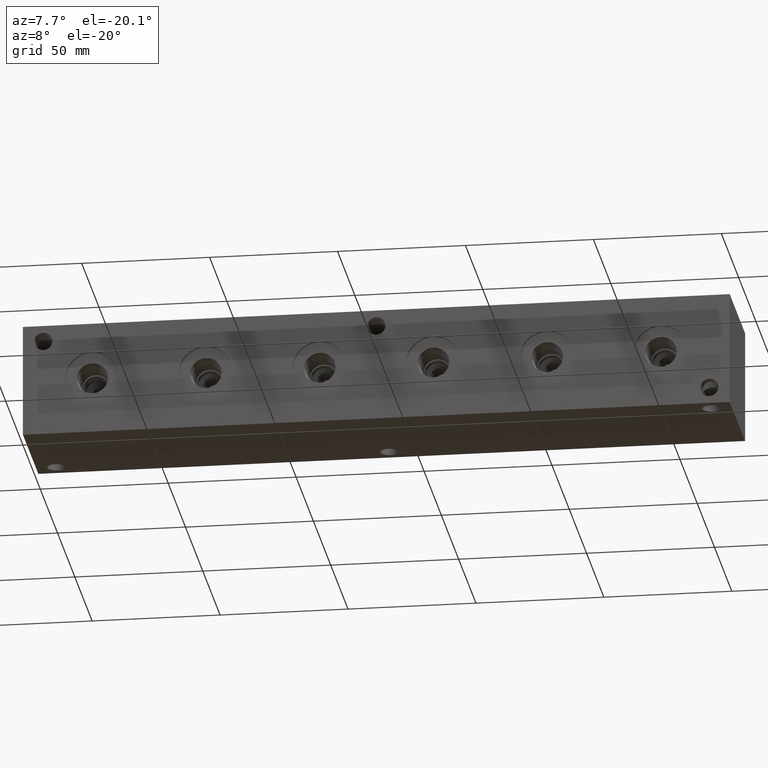
[diagram: clean part render]
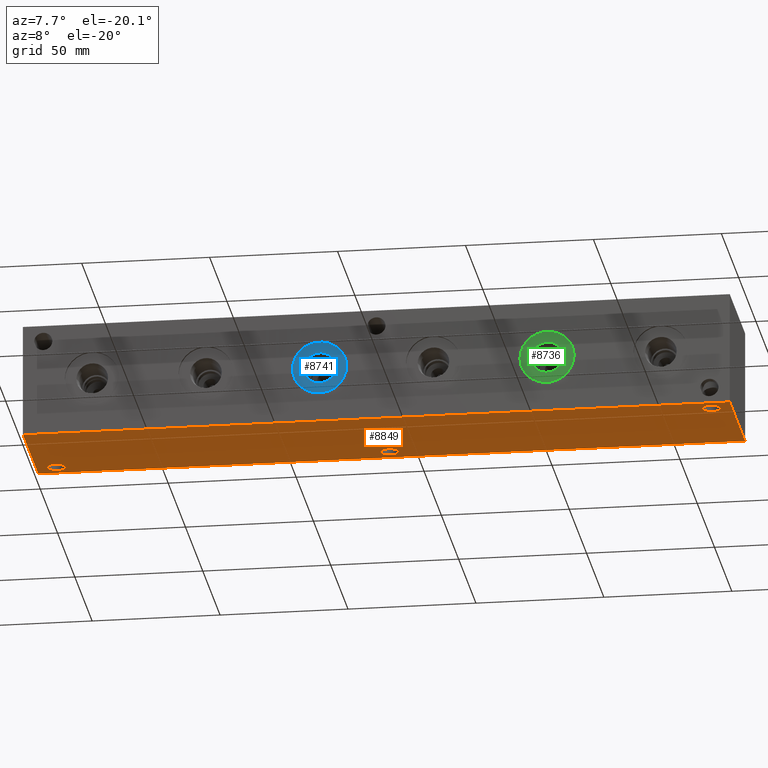
[diagram: same view with three faces highlighted in distinct colors, each labeled with its STEP entity id]
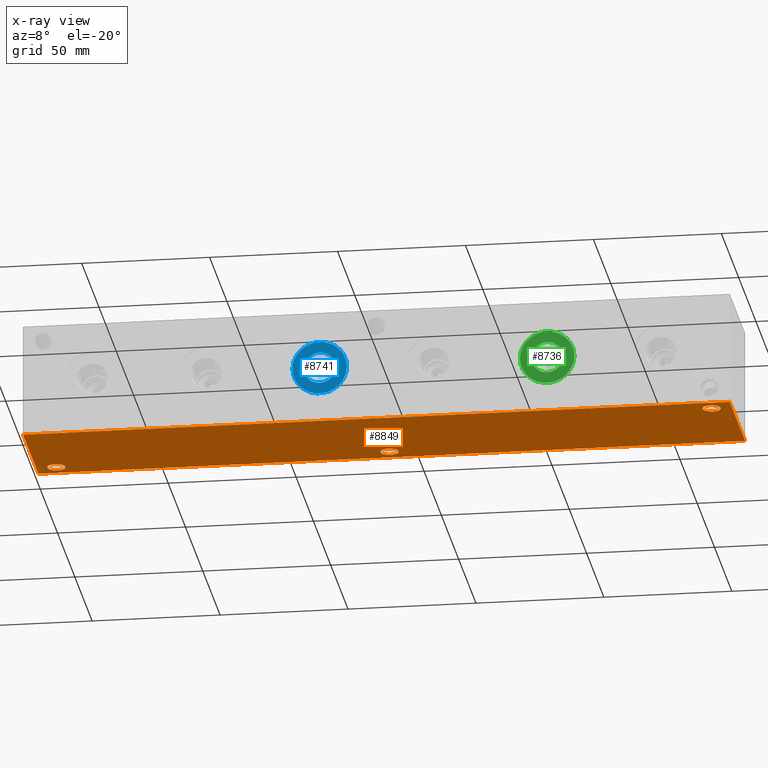
[diagram: x-ray of the same camera — body ghosted, the three highlighted faces saturated]
A machine part, auxiliary view with three faces highlighted in distinct colors.
The next image is the same camera in x-ray (body ghosted, the three faces saturated) — at least one of them is partly hidden behind the body in this view.
Their STEP definitions:

[orange] entity #8849 — the highlighted planar face has unit normal (0, 0, 1).
#381=CIRCLE('',#9452,3.5687);
#382=CIRCLE('',#9454,3.5687);
#383=CIRCLE('',#9456,3.5687);
#458=FACE_BOUND('',#1804,.T.);
#459=FACE_BOUND('',#1805,.T.);
#460=FACE_BOUND('',#1806,.T.);
#1267=FACE_OUTER_BOUND('',#1803,.T.);
#1803=EDGE_LOOP('',(#7847,#7848,#7849,#7850));
#1804=EDGE_LOOP('',(#7851));
#1805=EDGE_LOOP('',(#7852));
#1806=EDGE_LOOP('',(#7853));
#2554=LINE('',#15424,#3309);
#2557=LINE('',#15429,#3312);
#2559=LINE('',#15433,#3314);
#2561=LINE('',#15436,#3316);
#3309=VECTOR('',#11400,10.);
#3312=VECTOR('',#11405,10.);
#3314=VECTOR('',#11409,10.);
#3316=VECTOR('',#11413,10.);
#4136=VERTEX_POINT('',#15410);
#4137=VERTEX_POINT('',#15414);
#4138=VERTEX_POINT('',#15418);
#4139=VERTEX_POINT('',#15422);
#4140=VERTEX_POINT('',#15423);
#4141=VERTEX_POINT('',#15428);
#4142=VERTEX_POINT('',#15432);
#5367=EDGE_CURVE('',#4136,#4136,#381,.T.);
#5369=EDGE_CURVE('',#4137,#4137,#382,.T.);
#5371=EDGE_CURVE('',#4138,#4138,#383,.T.);
#5372=EDGE_CURVE('',#4139,#4140,#2554,.T.);
#5375=EDGE_CURVE('',#4141,#4139,#2557,.T.);
#5377=EDGE_CURVE('',#4142,#4141,#2559,.T.);
#5379=EDGE_CURVE('',#4140,#4142,#2561,.T.);
#7847=ORIENTED_EDGE('',*,*,#5379,.F.);
#7848=ORIENTED_EDGE('',*,*,#5372,.F.);
#7849=ORIENTED_EDGE('',*,*,#5375,.F.);
#7850=ORIENTED_EDGE('',*,*,#5377,.F.);
#7851=ORIENTED_EDGE('',*,*,#5367,.T.);
#7852=ORIENTED_EDGE('',*,*,#5369,.T.);
#7853=ORIENTED_EDGE('',*,*,#5371,.T.);
#8082=PLANE('',#9462);
#8849=ADVANCED_FACE('',(#1267,#458,#459,#460),#8082,.F.);
#9452=AXIS2_PLACEMENT_3D('',#15412,#11386,#11387);
#9454=AXIS2_PLACEMENT_3D('',#15416,#11391,#11392);
#9456=AXIS2_PLACEMENT_3D('',#15420,#11396,#11397);
#9462=AXIS2_PLACEMENT_3D('',#15438,#11416,#11417);
#11386=DIRECTION('center_axis',(0.,0.,1.));
#11387=DIRECTION('ref_axis',(1.,0.,0.));
#11391=DIRECTION('center_axis',(0.,0.,1.));
#11392=DIRECTION('ref_axis',(1.,0.,0.));
#11396=DIRECTION('center_axis',(0.,0.,1.));
#11397=DIRECTION('ref_axis',(1.,0.,0.));
#11400=DIRECTION('',(0.,-1.,0.));
#11405=DIRECTION('',(-1.,0.,0.));
#11409=DIRECTION('',(0.,1.,0.));
#11413=DIRECTION('',(1.,0.,0.));
#11416=DIRECTION('center_axis',(0.,0.,1.));
#11417=DIRECTION('ref_axis',(1.,0.,0.));
#15410=CARTESIAN_POINT('',(264.7061,6.35,0.));
#15412=CARTESIAN_POINT('Origin',(268.2748,6.35,0.));
#15414=CARTESIAN_POINT('',(4.3561,38.1,0.));
#15416=CARTESIAN_POINT('Origin',(7.9248,38.1,0.));
#15418=CARTESIAN_POINT('',(134.5565,38.1,0.));
#15420=CARTESIAN_POINT('Origin',(138.1252,38.1,0.));
#15422=CARTESIAN_POINT('',(0.,44.45,0.));
#15423=CARTESIAN_POINT('',(0.,0.,0.));
#15424=CARTESIAN_POINT('',(0.,44.45,0.));
#15428=CARTESIAN_POINT('',(276.225,44.45,0.));
#15429=CARTESIAN_POINT('',(276.225,44.45,0.));
#15432=CARTESIAN_POINT('',(276.225,0.,0.));
#15433=CARTESIAN_POINT('',(276.225,0.,0.));
#15436=CARTESIAN_POINT('',(0.,0.,0.));
#15438=CARTESIAN_POINT('Origin',(138.1125,22.225,0.));

[blue] entity #8741 — the highlighted planar face has unit normal (0, -1, 0).
#259=CIRCLE('',#9197,10.6426);
#260=CIRCLE('',#9198,10.6426);
#261=CIRCLE('',#9199,6.1976);
#429=FACE_BOUND('',#1667,.T.);
#1159=FACE_OUTER_BOUND('',#1666,.T.);
#1666=EDGE_LOOP('',(#7295,#7296));
#1667=EDGE_LOOP('',(#7297));
#3983=VERTEX_POINT('',#14919);
#3984=VERTEX_POINT('',#14920);
#3985=VERTEX_POINT('',#14923);
#5128=EDGE_CURVE('',#3983,#3984,#259,.T.);
#5129=EDGE_CURVE('',#3984,#3983,#260,.T.);
#5130=EDGE_CURVE('',#3985,#3985,#261,.T.);
#7295=ORIENTED_EDGE('',*,*,#5128,.T.);
#7296=ORIENTED_EDGE('',*,*,#5129,.T.);
#7297=ORIENTED_EDGE('',*,*,#5130,.F.);
#8060=PLANE('',#9196);
#8741=ADVANCED_FACE('',(#1159,#429),#8060,.T.);
#9196=AXIS2_PLACEMENT_3D('',#14918,#10790,#10791);
#9197=AXIS2_PLACEMENT_3D('',#14921,#10792,#10793);
#9198=AXIS2_PLACEMENT_3D('',#14922,#10794,#10795);
#9199=AXIS2_PLACEMENT_3D('',#14924,#10796,#10797);
#10790=DIRECTION('center_axis',(0.,-1.,0.));
#10791=DIRECTION('ref_axis',(1.,0.,0.));
#10792=DIRECTION('center_axis',(0.,-1.,0.));
#10793=DIRECTION('ref_axis',(1.,0.,0.));
#10794=DIRECTION('center_axis',(0.,-1.,0.));
#10795=DIRECTION('ref_axis',(1.,0.,0.));
#10796=DIRECTION('center_axis',(0.,-1.,0.));
#10797=DIRECTION('ref_axis',(1.,0.,0.));
#14918=CARTESIAN_POINT('Origin',(115.8748,0.7874,22.225));
#14919=CARTESIAN_POINT('',(126.5174,0.7874,22.225));
#14920=CARTESIAN_POINT('',(105.2322,0.7874,22.225));
#14921=CARTESIAN_POINT('Origin',(115.8748,0.7874,22.225));
#14922=CARTESIAN_POINT('Origin',(115.8748,0.7874,22.225));
#14923=CARTESIAN_POINT('',(109.6772,0.7874,22.225));
#14924=CARTESIAN_POINT('Origin',(115.8748,0.7874,22.225));

[green] entity #8736 — the highlighted planar face has unit normal (0, -1, 0).
#254=CIRCLE('',#9180,10.6426);
#255=CIRCLE('',#9181,10.6426);
#256=CIRCLE('',#9182,6.1976);
#428=FACE_BOUND('',#1661,.T.);
#1154=FACE_OUTER_BOUND('',#1660,.T.);
#1660=EDGE_LOOP('',(#7269,#7270));
#1661=EDGE_LOOP('',(#7271));
#3972=VERTEX_POINT('',#14887);
#3973=VERTEX_POINT('',#14888);
#3974=VERTEX_POINT('',#14891);
#5112=EDGE_CURVE('',#3972,#3973,#254,.T.);
#5113=EDGE_CURVE('',#3973,#3972,#255,.T.);
#5114=EDGE_CURVE('',#3974,#3974,#256,.T.);
#7269=ORIENTED_EDGE('',*,*,#5112,.T.);
#7270=ORIENTED_EDGE('',*,*,#5113,.T.);
#7271=ORIENTED_EDGE('',*,*,#5114,.F.);
#8059=PLANE('',#9179);
#8736=ADVANCED_FACE('',(#1154,#428),#8059,.T.);
#9179=AXIS2_PLACEMENT_3D('',#14886,#10752,#10753);
#9180=AXIS2_PLACEMENT_3D('',#14889,#10754,#10755);
#9181=AXIS2_PLACEMENT_3D('',#14890,#10756,#10757);
#9182=AXIS2_PLACEMENT_3D('',#14892,#10758,#10759);
#10752=DIRECTION('center_axis',(0.,-1.,0.));
#10753=DIRECTION('ref_axis',(1.,0.,0.));
#10754=DIRECTION('center_axis',(0.,-1.,0.));
#10755=DIRECTION('ref_axis',(1.,0.,0.));
#10756=DIRECTION('center_axis',(0.,-1.,0.));
#10757=DIRECTION('ref_axis',(1.,0.,0.));
#10758=DIRECTION('center_axis',(0.,-1.,0.));
#10759=DIRECTION('ref_axis',(1.,0.,0.));
#14886=CARTESIAN_POINT('Origin',(204.7748,0.7874,22.225));
#14887=CARTESIAN_POINT('',(215.4174,0.7874,22.225));
#14888=CARTESIAN_POINT('',(194.1322,0.7874,22.225));
#14889=CARTESIAN_POINT('Origin',(204.7748,0.7874,22.225));
#14890=CARTESIAN_POINT('Origin',(204.7748,0.7874,22.225));
#14891=CARTESIAN_POINT('',(198.5772,0.7874,22.225));
#14892=CARTESIAN_POINT('Origin',(204.7748,0.7874,22.225));